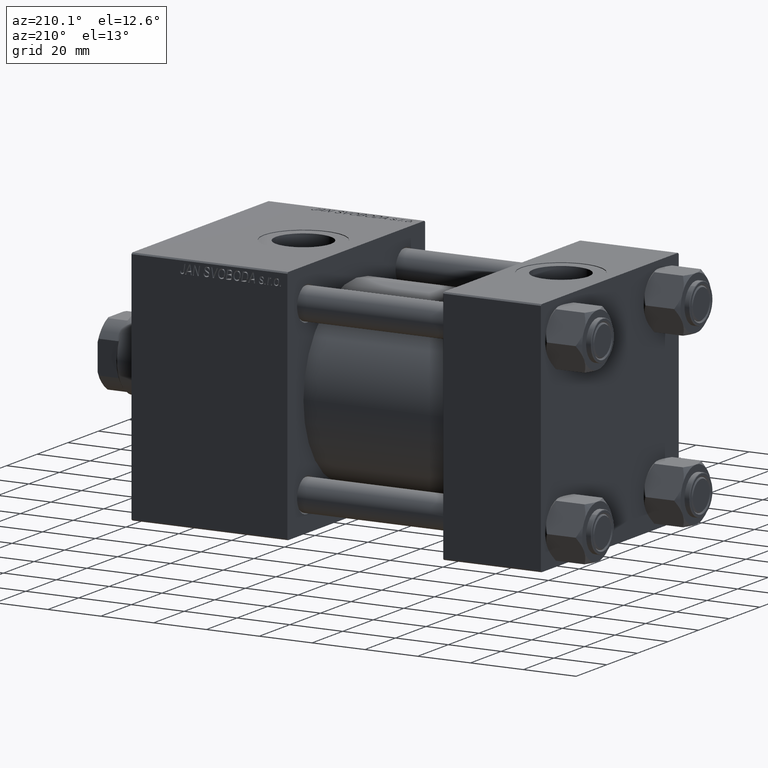
[diagram: clean part render]
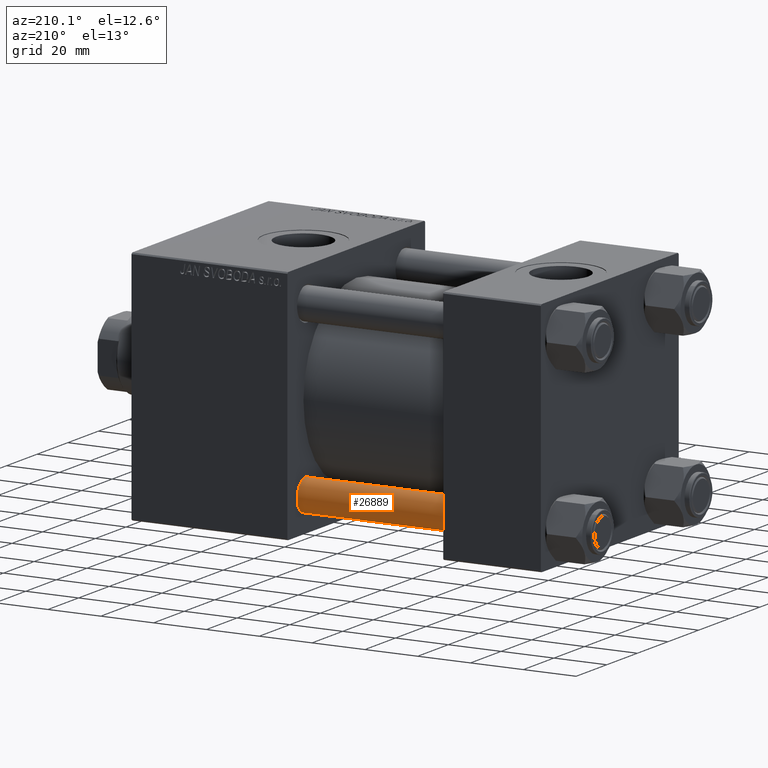
[diagram: same view with one face highlighted and labeled with its STEP entity id]
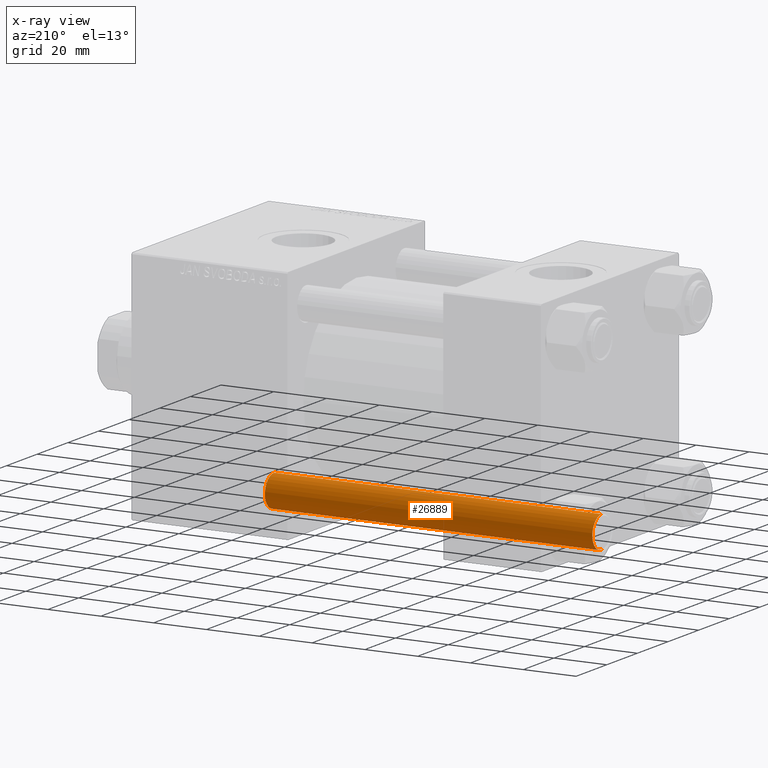
[diagram: x-ray of the same camera — body ghosted, the highlighted face saturated]
A machine part, auxiliary view. The second image highlights one B-rep face of the part: STEP entity #26889.
The next image is the same camera in x-ray: the body ghosted, the highlighted face saturated — about 0% of this face is hidden behind the body in this view.
In plain terms, the highlighted cylindrical surface (edge-blend (fillet) strip) has radius 6 mm, axis along (1, -0, -0).
Its self-contained STEP definition (entity closure, byte-faithful):
#734 = VECTOR ( 'NONE', #44576, 1000.000000000000000 ) ;
#779 = CARTESIAN_POINT ( 'NONE',  ( 0.000000000000000000, 0.000000000000000000, 124.5000000000000000 ) ) ;
#2608 = EDGE_CURVE ( 'NONE', #16929, #35992, #49434, .T. ) ;
#3958 = CARTESIAN_POINT ( 'NONE',  ( -6.000000000000000888, 0.000000000000000000, 0.4999999999999865663 ) ) ;
#4442 = CARTESIAN_POINT ( 'NONE',  ( 0.000000000000000000, 0.000000000000000000, 125.0000000000000000 ) ) ;
#5229 = LINE ( 'NONE', #17892, #734 ) ;
#5923 = VERTEX_POINT ( 'NONE', #3958 ) ;
#6722 = CARTESIAN_POINT ( 'NONE',  ( 0.000000000000000000, 0.000000000000000000, 0.4999999999999865663 ) ) ;
#7658 = DIRECTION ( 'NONE',  ( 0.000000000000000000, 0.000000000000000000, -1.000000000000000000 ) ) ;
#8152 = DIRECTION ( 'NONE',  ( 1.000000000000000000, 0.000000000000000000, 0.000000000000000000 ) ) ;
#15423 = CARTESIAN_POINT ( 'NONE',  ( -6.000000000000000888, 0.000000000000000000, 125.0000000000000000 ) ) ;
#16509 = ORIENTED_EDGE ( 'NONE', *, *, #40098, .F. ) ;
#16929 = VERTEX_POINT ( 'NONE', #27339 ) ;
#17892 = CARTESIAN_POINT ( 'NONE',  ( 6.000000000000000888, 7.347880794884120722E-16, 125.0000000000000000 ) ) ;
#18529 = CARTESIAN_POINT ( 'NONE',  ( 6.000000000000000888, 7.347880794884120722E-16, 0.4999999999999865663 ) ) ;
#20690 = VERTEX_POINT ( 'NONE', #18529 ) ;
#21896 = CIRCLE ( 'NONE', #45429, 6.000000000000000888 ) ;
#22185 = DIRECTION ( 'NONE',  ( 1.000000000000000000, 0.000000000000000000, 0.000000000000000000 ) ) ;
#23544 = DIRECTION ( 'NONE',  ( -0.000000000000000000, -0.000000000000000000, -1.000000000000000000 ) ) ;
#25753 = ORIENTED_EDGE ( 'NONE', *, *, #36177, .T. ) ;
#26700 = AXIS2_PLACEMENT_3D ( 'NONE', #779, #7658, #8152 ) ;
#26889 = ADVANCED_FACE ( 'NONE', ( #39201 ), #43024, .T. ) ;
#27031 = DIRECTION ( 'NONE',  ( -1.000000000000000000, 0.000000000000000000, 0.000000000000000000 ) ) ;
#27339 = CARTESIAN_POINT ( 'NONE',  ( -6.000000000000000888, 0.000000000000000000, 124.5000000000000000 ) ) ;
#27686 = ORIENTED_EDGE ( 'NONE', *, *, #2608, .T. ) ;
#31106 = DIRECTION ( 'NONE',  ( -0.000000000000000000, -0.000000000000000000, -1.000000000000000000 ) ) ;
#33094 = AXIS2_PLACEMENT_3D ( 'NONE', #4442, #31106, #27031 ) ;
#33183 = EDGE_CURVE ( 'NONE', #35992, #20690, #5229, .T. ) ;
#35992 = VERTEX_POINT ( 'NONE', #36672 ) ;
#36177 = EDGE_CURVE ( 'NONE', #20690, #5923, #21896, .T. ) ;
#36672 = CARTESIAN_POINT ( 'NONE',  ( 6.000000000000000888, 7.347880794884120722E-16, 124.5000000000000000 ) ) ;
#37674 = ORIENTED_EDGE ( 'NONE', *, *, #33183, .T. ) ;
#39201 = FACE_OUTER_BOUND ( 'NONE', #47419, .T. ) ;
#40098 = EDGE_CURVE ( 'NONE', #16929, #5923, #43333, .T. ) ;
#43024 = CYLINDRICAL_SURFACE ( 'NONE', #33094, 6.000000000000000888 ) ;
#43333 = LINE ( 'NONE', #15423, #44748 ) ;
#44576 = DIRECTION ( 'NONE',  ( -0.000000000000000000, -0.000000000000000000, -1.000000000000000000 ) ) ;
#44748 = VECTOR ( 'NONE', #23544, 1000.000000000000000 ) ;
#45301 = DIRECTION ( 'NONE',  ( -0.000000000000000000, -0.000000000000000000, 1.000000000000000000 ) ) ;
#45429 = AXIS2_PLACEMENT_3D ( 'NONE', #6722, #45301, #22185 ) ;
#47419 = EDGE_LOOP ( 'NONE', ( #27686, #37674, #25753, #16509 ) ) ;
#49434 = CIRCLE ( 'NONE', #26700, 6.000000000000000888 ) ;